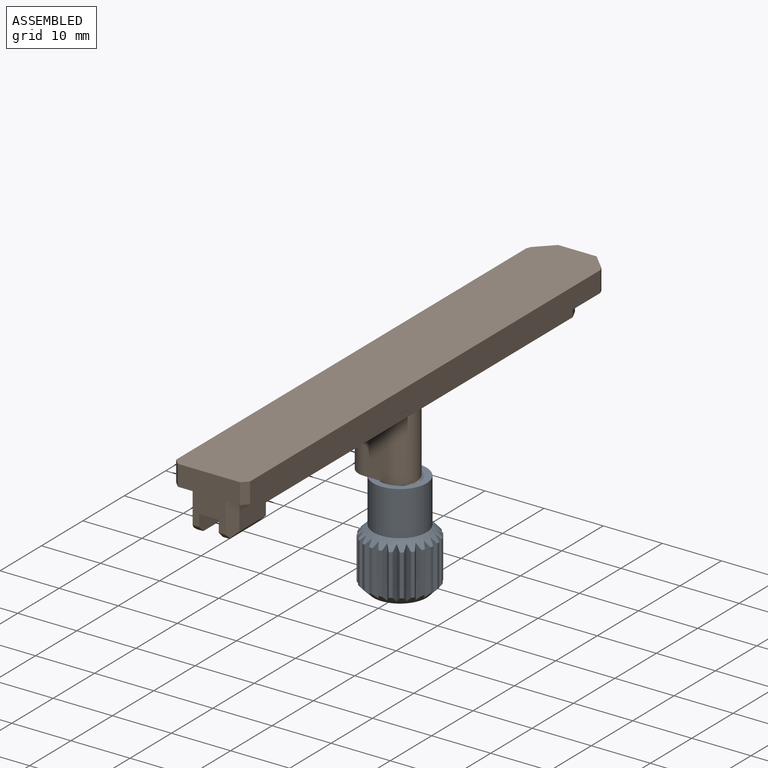
[diagram: assembled view]
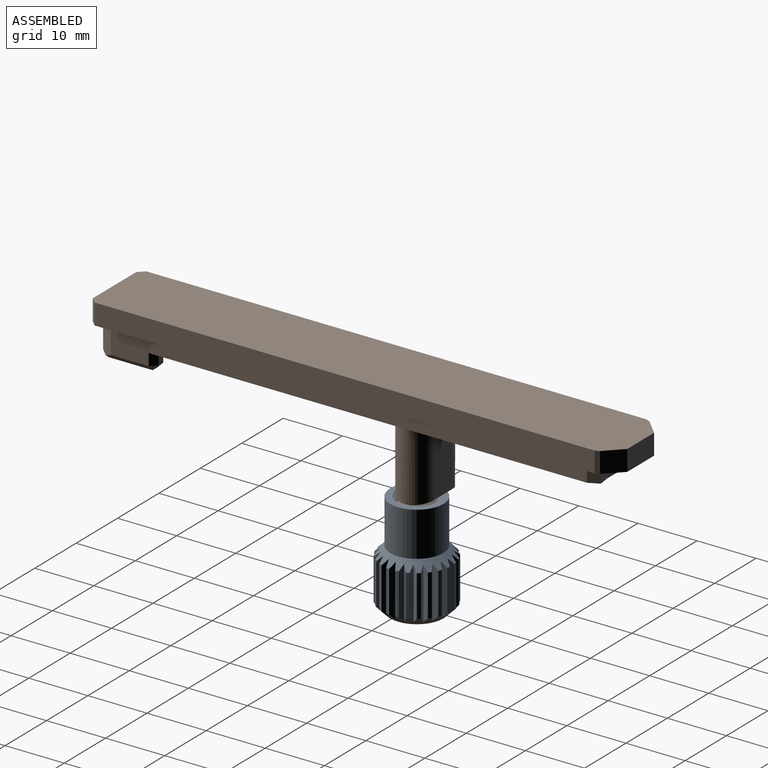
[diagram: assembled view, second angle]
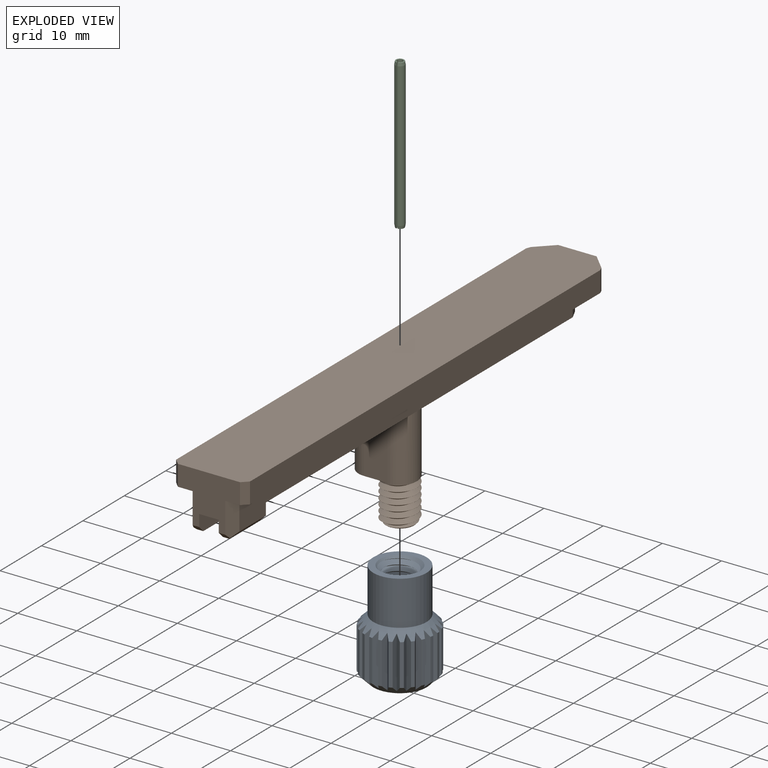
[diagram: exploded view]
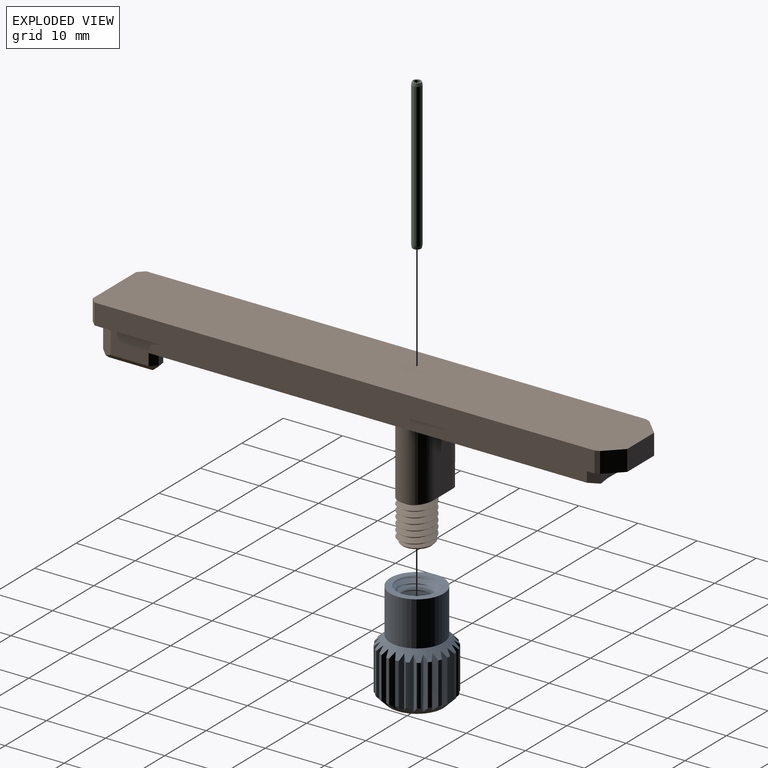
[diagram: exploded view, second angle]
ASSEMBLY  parts=3 mates=2
PART A: 83 faces, bbox 12x12x18 mm
  f0: cylinder r=6mm len=7mm, axis (0,0,1), area 4mm2, adj f33,f34,f50,f81
  f1: cylinder r=6mm len=7mm, axis (0,0,1), area 4mm2, adj f33,f34,f79,f82
  f2: cylinder r=6mm len=7mm, axis (0,0,1), area 4mm2, adj f33,f34,f77,f80
  f3: cylinder r=6mm len=7mm, axis (0,0,1), area 4mm2, adj f33,f34,f75,f78
  f4: cylinder r=6mm len=7mm, axis (0,0,1), area 4mm2, adj f33,f34,f73,f76
  f5: cylinder r=6mm len=7mm, axis (0,0,1), area 4mm2, adj f33,f34,f71,f74
  f6: cylinder r=6mm len=7mm, axis (0,0,1), area 4mm2, adj f33,f34,f69,f72
  f7: cylinder r=6mm len=7mm, axis (0,0,1), area 4mm2, adj f33,f34,f67,f70
  f8: cylinder r=6mm len=7mm, axis (0,0,1), area 4mm2, adj f33,f34,f65,f68
  f9: cylinder r=6mm len=7mm, axis (0,0,1), area 4mm2, adj f33,f34,f63,f66
  f10: cylinder r=6mm len=7mm, axis (0,0,1), area 4mm2, adj f33,f34,f61,f64
  f11: cylinder r=6mm len=7mm, axis (0,0,1), area 4mm2, adj f33,f34,f59,f62
  f12: cylinder r=6mm len=7mm, axis (0,0,1), area 4mm2, adj f33,f34,f57,f60
  f13: cylinder r=6mm len=7mm, axis (0,0,1), area 4mm2, adj f33,f34,f55,f58
  f14: cylinder r=6mm len=7mm, axis (0,0,1), area 4mm2, adj f33,f34,f53,f56
  f15: cylinder r=6mm len=7mm, axis (0,0,1), area 4mm2, adj f33,f34,f51,f54
  f16: cylinder r=6mm len=7mm, axis (0,0,1), area 4mm2, adj f33,f34,f48,f49
  f17: cylinder r=6mm len=7mm, axis (0,0,1), area 4mm2, adj f33,f34,f46,f47
  f18: cylinder r=6mm len=7mm, axis (0,0,1), area 4mm2, adj f33,f34,f44,f45
  f19: cylinder r=6mm len=7mm, axis (0,0,1), area 4mm2, adj f33,f34,f42,f43
  f20: cylinder r=6mm len=7mm, axis (0,0,1), area 4mm2, adj f33,f34,f40,f41
  f21: cylinder r=6mm len=7mm, axis (0,0,1), area 4mm2, adj f33,f34,f38,f39
  f22: cylinder r=6mm len=7mm, axis (0,0,1), area 4mm2, adj f33,f34,f36,f37
  f23: cylinder r=2.6mm len=6.7mm, axis (0,0,1), area -14.5mm2, adj f26,f27,f28,f32
  f24: cylinder r=4.5mm len=9mm, axis (0,0,1), area 212.1mm2, adj f25,f33
  f25: plane 9x9mm, normal (0,0,1), area 27.3mm2, adj f24,f26,f27,f28,f29
  f26: cone r=2.6mm half-angle=45deg, axis (0,0,1), area 10.7mm2, adj f23,f25,f27,f28,f29
  f27: bspline ~8.66x7.96mm, area 133.1mm2, adj f23,f25,f26,f28,f32
  f28: bspline ~8.16x7.96mm, area 133.9mm2, adj f23,f25,f26,f27,f29,f32
  f29: plane 0.07x0.04mm, normal (0,-1,0), area 0mm2, adj f25,f26,f28
  f30: plane 9x9mm, normal (0,0,-1), area 63.6mm2, adj f34
  f31: cylinder r=6mm len=7mm, axis (0,0,1), area 4mm2, adj f33,f34,f35,f52
  f32: plane 6.06x6.06mm, normal (0,0,1), area 28.8mm2, adj f23,f27,f28
  f33: cone r=6mm half-angle=45deg, axis (0,0,-1), area 55.6mm2, adj f0,f1,f2,f3,f4,f5,f6,f7
  f34: cone r=4.5mm half-angle=45deg, axis (0,0,1), area 55.6mm2, adj f0,f1,f2,f3,f4,f5,f6,f7
  f35: plane 8.81x0.91mm, normal (0.87,-0.5,0), area 7.9mm2, adj f31,f33,f34,f36
  f36: plane 8.81x0.91mm, normal (-0.87,-0.5,0), area 7.9mm2, adj f22,f33,f34,f35
  f37: plane 8.81x1.01mm, normal (0.97,-0.26,0), area 7.9mm2, adj f22,f33,f34,f38
  f38: plane 8.81x0.75mm, normal (-0.71,-0.71,0), area 7.9mm2, adj f21,f33,f34,f37
  f39: plane 8.81x1.04mm, normal (1,0,0), area 7.9mm2, adj f21,f33,f34,f40
  f40: plane 8.81x0.91mm, normal (-0.5,-0.87,0), area 7.9mm2, adj f20,f33,f34,f39
  f41: plane 8.81x1.01mm, normal (0.97,0.26,0), area 7.9mm2, adj f20,f33,f34,f42
  f42: plane 8.81x1.01mm, normal (-0.26,-0.97,0), area 7.9mm2, adj f19,f33,f34,f41
  f43: plane 8.81x0.91mm, normal (0.87,0.5,0), area 7.9mm2, adj f19,f33,f34,f44
  f44: plane 8.81x1.04mm, normal (0,-1,0), area 7.9mm2, adj f18,f33,f34,f43
  f45: plane 8.81x0.75mm, normal (0.71,0.71,0), area 7.9mm2, adj f18,f33,f34,f46
  f46: plane 8.81x1.01mm, normal (0.26,-0.97,0), area 7.9mm2, adj f17,f33,f34,f45
  f47: plane 8.81x0.91mm, normal (0.5,0.87,0), area 7.9mm2, adj f17,f33,f34,f48
  f48: plane 8.81x0.91mm, normal (0.5,-0.87,0), area 7.9mm2, adj f16,f33,f34,f47
  f49: plane 8.81x1.01mm, normal (0.26,0.97,0), area 7.9mm2, adj f16,f33,f34,f50
  f50: plane 8.81x0.75mm, normal (0.71,-0.71,0), area 7.9mm2, adj f0,f33,f34,f49
  f51: plane 8.81x0.75mm, normal (0.71,-0.71,0), area 7.9mm2, adj f15,f33,f34,f52
  f52: plane 8.81x1.01mm, normal (-0.97,-0.26,0), area 7.9mm2, adj f31,f33,f34,f51
  f53: plane 8.81x0.91mm, normal (0.5,-0.87,0), area 7.9mm2, adj f14,f33,f34,f54
  f54: plane 8.81x1.04mm, normal (-1,0,0), area 7.9mm2, adj f15,f33,f34,f53
  f55: plane 8.81x1.01mm, normal (0.26,-0.97,0), area 7.9mm2, adj f13,f33,f34,f56
  f56: plane 8.81x1.01mm, normal (-0.97,0.26,0), area 7.9mm2, adj f14,f33,f34,f55
  f57: plane 8.81x1.04mm, normal (0,-1,0), area 7.9mm2, adj f12,f33,f34,f58
  f58: plane 8.81x0.91mm, normal (-0.87,0.5,0), area 7.9mm2, adj f13,f33,f34,f57
  f59: plane 8.81x1.01mm, normal (-0.26,-0.97,0), area 7.9mm2, adj f11,f33,f34,f60
  f60: plane 8.81x0.75mm, normal (-0.71,0.71,0), area 7.9mm2, adj f12,f33,f34,f59
  f61: plane 8.81x0.91mm, normal (-0.5,-0.87,0), area 7.9mm2, adj f10,f33,f34,f62
  f62: plane 8.81x0.91mm, normal (-0.5,0.87,0), area 7.9mm2, adj f11,f33,f34,f61
  f63: plane 8.81x0.75mm, normal (-0.71,-0.71,0), area 7.9mm2, adj f9,f33,f34,f64
  f64: plane 8.81x1.01mm, normal (-0.26,0.97,0), area 7.9mm2, adj f10,f33,f34,f63
  f65: plane 8.81x0.91mm, normal (-0.87,-0.5,0), area 7.9mm2, adj f8,f33,f34,f66
  f66: plane 8.81x1.04mm, normal (0,1,0), area 7.9mm2, adj f9,f33,f34,f65
  f67: plane 8.81x1.01mm, normal (-0.97,-0.26,0), area 7.9mm2, adj f7,f33,f34,f68
  f68: plane 8.81x1.01mm, normal (0.26,0.97,0), area 7.9mm2, adj f8,f33,f34,f67
  f69: plane 8.81x1.04mm, normal (-1,0,0), area 7.9mm2, adj f6,f33,f34,f70
  f70: plane 8.81x0.91mm, normal (0.5,0.87,0), area 7.9mm2, adj f7,f33,f34,f69
  f71: plane 8.81x1.01mm, normal (-0.97,0.26,0), area 7.9mm2, adj f5,f33,f34,f72
  f72: plane 8.81x0.75mm, normal (0.71,0.71,0), area 7.9mm2, adj f6,f33,f34,f71
  f73: plane 8.81x0.91mm, normal (-0.87,0.5,0), area 7.9mm2, adj f4,f33,f34,f74
  f74: plane 8.81x0.91mm, normal (0.87,0.5,0), area 7.9mm2, adj f5,f33,f34,f73
  f75: plane 8.81x0.75mm, normal (-0.71,0.71,0), area 7.9mm2, adj f3,f33,f34,f76
  f76: plane 8.81x1.01mm, normal (0.97,0.26,0), area 7.9mm2, adj f4,f33,f34,f75
  f77: plane 8.81x0.91mm, normal (-0.5,0.87,0), area 7.9mm2, adj f2,f33,f34,f78
  f78: plane 8.81x1.04mm, normal (1,0,0), area 7.9mm2, adj f3,f33,f34,f77
  f79: plane 8.81x1.01mm, normal (-0.26,0.97,0), area 7.9mm2, adj f1,f33,f34,f80
  f80: plane 8.81x1.01mm, normal (0.97,-0.26,0), area 7.9mm2, adj f2,f33,f34,f79
  f81: plane 8.81x1.04mm, normal (0,1,0), area 7.9mm2, adj f0,f33,f34,f82
  f82: plane 8.81x0.91mm, normal (0.87,-0.5,0), area 7.9mm2, adj f1,f33,f34,f81
PART B: 55 faces, bbox 15.8x89.2x27.8 mm
  f0: plane 80.53x5.2mm, normal (1,0,0), area 270.5mm2, adj f2,f14,f35,f38,f49,f52
  f1: plane 80.54x5.21mm, normal (-1,0,0), area 273.2mm2, adj f2,f8,f14,f16,f19,f41,f43,f50
  f2: plane 84.35x7.56mm, normal (0,0,-1), area 568.9mm2, adj f0,f1,f4,f9,f16,f19,f28,f29
  f3: cylinder r=3mm len=8.1mm, axis (0,0,1), area 68.8mm2, adj f5,f6,f7,f17,f26
  f4: cylinder r=3mm len=19.6mm, axis (0,0,1), area 143.9mm2, adj f2,f5,f6,f7,f16,f19,f23,f24
  f5: plane 7x5.57mm, normal (0,0,-1), area 22.3mm2, adj f3,f4,f7,f26
  f6: plane 12.72x4mm, normal (0,1,0), area 41.1mm2, adj f3,f4,f16,f26
  f7: plane 12.97x4mm, normal (0,-1,0), area 42.1mm2, adj f3,f4,f5,f19
  f8: plane 5.57x0.48mm, normal (0,0,1), area 2.5mm2, adj f1,f16,f18,f19
  f9: plane 10.5x8.7mm, normal (0,-1,0), area 58.7mm2, adj f2,f13,f14,f30,f33,f39,f44,f47
  f10: plane 84.59x3.5mm, normal (-1,0,0), area 296.1mm2, adj f13,f14,f46,f47
  f11: plane 84.59x3.5mm, normal (1,0,0), area 296.1mm2, adj f13,f14,f45,f48
  f12: plane 6.5x3.5mm, normal (0,1,0), area 22.8mm2, adj f13,f14,f20,f21
  f13: plane 89x12.5mm, normal (0,0,1), area 1102.4mm2, adj f9,f10,f11,f12,f20,f21,f45,f46
  f14: plane 89x12.5mm, normal (0,0,-1), area 474.9mm2, adj f0,f1,f9,f10,f11,f12,f20,f21
  f15: plane 3.82x3.13mm, normal (-0.77,0,0.63), area 9.2mm2, adj f16,f17,f18,f19
  f16: cylinder r=2mm len=6.32mm, axis (0.63,0,0.77), area 15.5mm2, adj f1,f2,f4,f6,f8,f15,f17,f18
  f17: bspline ~6.49x3.52mm, area 14.3mm2, adj f3,f15,f16,f19
  f18: cylinder r=2mm len=5.09mm, axis (0,-1,0), area 6.3mm2, adj f8,f15,f16,f19
  f19: cylinder r=2mm len=6.32mm, axis (-0.63,0,-0.77), area 15.5mm2, adj f1,f2,f4,f7,f8,f15,f17,f18
  f20: plane 3.5x2.71mm, normal (0.71,0.71,0), area 13.4mm2, adj f12,f13,f14,f45
  f21: plane 3.5x2.71mm, normal (-0.71,0.71,0), area 13.4mm2, adj f12,f13,f14,f46
  f22: plane 4.89x4.68mm, normal (0,0,-1), area 15mm2, adj f23,f24,f25,f53
  f23: cone r=3mm half-angle=45deg, axis (0,0,1), area 5.1mm2, adj f4,f22,f24,f25
  f24: bspline ~7.49x6.93mm, area 108.7mm2, adj f4,f22,f23,f25,f26
  f25: bspline ~7.49x6.93mm, area 99.5mm2, adj f4,f22,f23,f24,f27
  f26: plane 5.68x0.97mm, normal (0,0.5,-0.87), area 3.4mm2, adj f3,f4,f5,f6,f24,f27
  f27: plane 2.33x1.08mm, normal (0,0.5,0.87), area 1.4mm2, adj f4,f25,f26
  f28: cylinder r=14mm len=5.79mm, axis (0,0,-1), area 18.7mm2, adj f2,f14,f51,f52
  f29: plane 2x1.1mm, normal (0,1,0), area 2.2mm2, adj f2,f30,f40,f41
  f30: plane 9.4x3mm, normal (1,0,0), area 27.2mm2, adj f2,f9,f29,f31,f40,f44
  f31: plane 7.4x1.1mm, normal (0,0,-1), area 8.1mm2, adj f30,f40,f43,f44
  f32: plane 2x1.1mm, normal (0,1,0), area 2.2mm2, adj f2,f33,f35,f36
  f33: plane 9.4x3mm, normal (-1,0,0), area 27.2mm2, adj f2,f9,f32,f34,f36,f39
  f34: plane 7.4x1.1mm, normal (0,0,-1), area 8.1mm2, adj f33,f36,f38,f39
  f35: plane 2x1mm, normal (0.71,0.71,0), area 2.8mm2, adj f0,f2,f32,f37
  f36: plane 1.1x1mm, normal (0,0.71,-0.71), area 1.6mm2, adj f32,f33,f34,f37
  f37: plane 1x1mm, normal (0.58,0.58,-0.58), area 0.9mm2, adj f35,f36,f38
  f38: plane 7.73x1mm, normal (0.71,0,-0.71), area 10.2mm2, adj f0,f34,f37,f39,f49
  f39: plane 1.43x1mm, normal (0,-0.71,-0.71), area 1.8mm2, adj f9,f33,f34,f38,f49
  f40: plane 1.1x1mm, normal (0,0.71,-0.71), area 1.6mm2, adj f29,f30,f31,f42
  f41: plane 2x1mm, normal (-0.71,0.71,0), area 2.8mm2, adj f1,f2,f29,f42
  f42: plane 1x1mm, normal (-0.58,0.58,-0.58), area 0.9mm2, adj f40,f41,f43
  f43: plane 7.73x1mm, normal (-0.71,0,-0.71), area 10.2mm2, adj f1,f31,f42,f44,f50
  f44: plane 1.43x1mm, normal (0,-0.71,-0.71), area 1.8mm2, adj f9,f30,f31,f43,f50
  f45: plane 3.5x0.71mm, normal (0.92,0.38,0), area 2.7mm2, adj f11,f13,f14,f20
  f46: plane 3.5x0.71mm, normal (-0.92,0.38,0), area 2.7mm2, adj f10,f13,f14,f21
  f47: plane 3.5x1mm, normal (-0.71,-0.71,0), area 4.9mm2, adj f9,f10,f13,f14
  f48: plane 3.5x1mm, normal (0.71,-0.71,0), area 4.9mm2, adj f9,f11,f13,f14
  f49: plane 5.87x2mm, normal (0.89,-0.45,0), area 12.4mm2, adj f0,f9,f14,f38,f39
  f50: plane 5.87x2mm, normal (-0.89,-0.45,0), area 12.4mm2, adj f1,f9,f14,f43,f44
  f51: plane 3.2x1.76mm, normal (-0.9,0.44,0), area 6.3mm2, adj f1,f2,f14,f28
  f52: plane 3.2x1.76mm, normal (0.9,0.44,0), area 6.3mm2, adj f0,f2,f14,f28
  f53: cylinder r=0.9mm len=26mm, axis (0,0,-1), area 147mm2, adj f22,f54
  f54: plane 1.8x1.8mm, normal (0,0,-1), area 2.5mm2, adj f53
PART C: 8 faces, bbox 1.6x1.6x25.4 mm
  f0: cylinder r=0.5mm len=25.4mm, axis (0,0,1), area 74.7mm2, adj f1,f3,f4,f5
  f1: plane 25.4x0.3mm, normal (1,0,0), area 7.5mm2, adj f0,f2,f4,f5,f6,f7
  f2: cylinder r=0.79mm len=24.4mm, axis (0,0,1), area 116.8mm2, adj f1,f3,f6,f7
  f3: plane 25.4x0.3mm, normal (-1,0,0), area 7.5mm2, adj f0,f2,f4,f5,f6,f7
  f4: plane 1.41x1.4mm, normal (0,0,-1), area 0.7mm2, adj f0,f1,f3,f6
  f5: plane 1.41x1.4mm, normal (0,0,1), area 0.7mm2, adj f0,f1,f3,f7
  f6: cone r=0.71mm half-angle=10deg, axis (0,0,1), area 2.3mm2, adj f1,f2,f3,f4
  f7: cone r=0.79mm half-angle=10deg, axis (0,0,-1), area 2.3mm2, adj f1,f2,f3,f5
PLACE A t=(-17.35,0,-16.4)mm
PLACE B at identity fixed
PLACE C t=(0,0,25.4)mm
MATE fastened B.f4 <-> A.f24  axis (0,0,-1) through (-2.35,0,-16.4)mm
MATE fastened C.f0 <-> B.f53  axis (0,0,-1) through (-2.35,0,-23.4)mm
